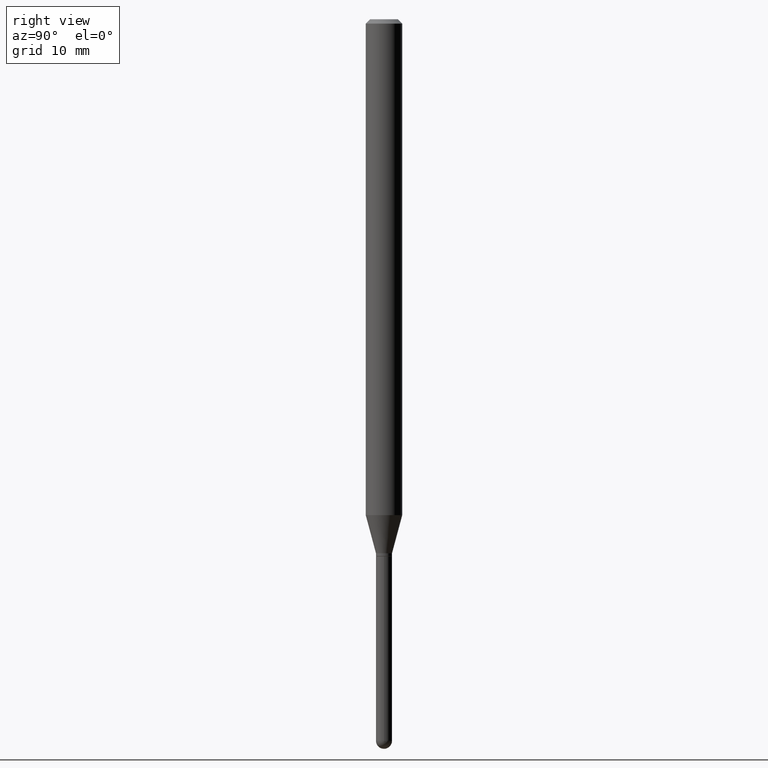
[diagram: clean part render]
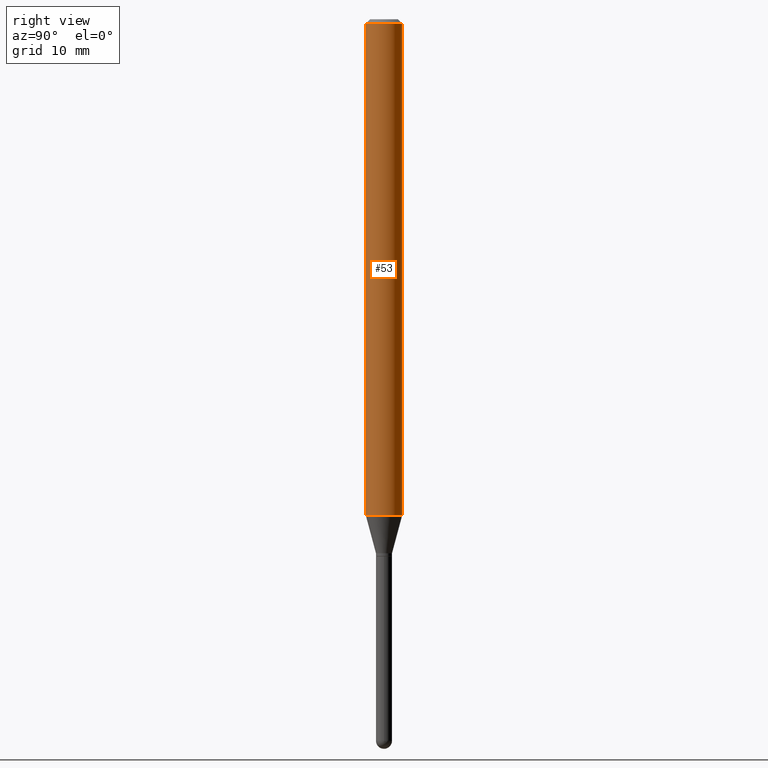
[diagram: same view with one face highlighted and labeled with its STEP entity id]
A machine part, right view. The second image highlights one B-rep face of the part: STEP entity #53.
In plain terms, the highlighted cylindrical surface (edge-blend (fillet) strip) has radius 1.5875 mm, axis along (-0, 0, 1).
Its self-contained STEP definition (entity closure, byte-faithful):
#9 = EDGE_CURVE ( 'NONE', #385, #246, #301, .T. ) ;
#15 = LINE ( 'NONE', #134, #336 ) ;
#28 = AXIS2_PLACEMENT_3D ( 'NONE', #346, #228, #185 ) ;
#45 = CARTESIAN_POINT ( 'NONE',  ( 4.440892098501044258E-16, 0.06249999999999995837, -0.01500000000000022669 ) ) ;
#53 = ADVANCED_FACE ( 'NONE', ( #347 ), #505, .T. ) ;
#81 = DIRECTION ( 'NONE',  ( -6.982962677686265922E-15, -1.000000000000000000, 3.483106191921935554E-15 ) ) ;
#85 = DIRECTION ( 'NONE',  ( -2.445464170802400853E-29, 3.491487976975052738E-15, 1.000000000000000000 ) ) ;
#112 = VECTOR ( 'NONE', #144, 39.37007874015748143 ) ;
#125 = DIRECTION ( 'NONE',  ( -6.982962677686265922E-15, -1.000000000000000000, 4.370956789862821150E-15 ) ) ;
#134 = CARTESIAN_POINT ( 'NONE',  ( -4.364351673553916201E-16, -0.06250000000000000000, 2.182179985609407961E-16 ) ) ;
#140 = ORIENTED_EDGE ( 'NONE', *, *, #259, .T. ) ;
#142 = ORIENTED_EDGE ( 'NONE', *, *, #230, .F. ) ;
#144 = DIRECTION ( 'NONE',  ( -2.445464170802401133E-29, 3.491487976975052738E-15, 1.000000000000000000 ) ) ;
#146 = CIRCLE ( 'NONE', #512, 0.06250000000000000000 ) ;
#158 = DIRECTION ( 'NONE',  ( -2.445464170802400853E-29, 3.491487976975052738E-15, 1.000000000000000000 ) ) ;
#171 = DIRECTION ( 'NONE',  ( -2.445464170802401133E-29, 3.491487976975052738E-15, 1.000000000000000000 ) ) ;
#185 = DIRECTION ( 'NONE',  ( -6.982962677686265922E-15, -1.000000000000000000, 3.491487976975052738E-15 ) ) ;
#216 = EDGE_LOOP ( 'NONE', ( #140, #409, #142, #266 ) ) ;
#222 = CARTESIAN_POINT ( 'NONE',  ( 4.440892098500625669E-16, 0.06250000000000000000, -2.182179985609407961E-16 ) ) ;
#228 = DIRECTION ( 'NONE',  ( -2.445464170802400853E-29, 3.491487976975052738E-15, 1.000000000000000000 ) ) ;
#230 = EDGE_CURVE ( 'NONE', #299, #246, #146, .T. ) ;
#239 = AXIS2_PLACEMENT_3D ( 'NONE', #322, #85, #125 ) ;
#246 = VERTEX_POINT ( 'NONE', #45 ) ;
#259 = EDGE_CURVE ( 'NONE', #368, #385, #452, .T. ) ;
#266 = ORIENTED_EDGE ( 'NONE', *, *, #439, .F. ) ;
#276 = CARTESIAN_POINT ( 'NONE',  ( 4.440892098501039328E-16, 0.06249999999999404643, -1.699378221735089678 ) ) ;
#299 = VERTEX_POINT ( 'NONE', #400 ) ;
#301 = LINE ( 'NONE', #222, #112 ) ;
#322 = CARTESIAN_POINT ( 'NONE',  ( 4.155768553895059531E-29, -5.933358629521309824E-15, -1.699378221735089456 ) ) ;
#336 = VECTOR ( 'NONE', #171, 39.37007874015748143 ) ;
#346 = CARTESIAN_POINT ( 'NONE',  ( 0.000000000000000000, 0.000000000000000000, 0.000000000000000000 ) ) ;
#347 = FACE_OUTER_BOUND ( 'NONE', #216, .T. ) ;
#368 = VERTEX_POINT ( 'NONE', #393 ) ;
#385 = VERTEX_POINT ( 'NONE', #276 ) ;
#393 = CARTESIAN_POINT ( 'NONE',  ( -4.364351673553502542E-16, -0.06250000000000595357, -1.699378221735089234 ) ) ;
#400 = CARTESIAN_POINT ( 'NONE',  ( -4.364351673553912750E-16, -0.06250000000000005551, -0.01499999999999979128 ) ) ;
#409 = ORIENTED_EDGE ( 'NONE', *, *, #9, .T. ) ;
#439 = EDGE_CURVE ( 'NONE', #368, #299, #15, .T. ) ;
#440 = CARTESIAN_POINT ( 'NONE',  ( 3.668196256203603906E-31, -5.237231965462582657E-17, -0.01500000000000000812 ) ) ;
#452 = CIRCLE ( 'NONE', #239, 0.06250000000000000000 ) ;
#505 = CYLINDRICAL_SURFACE ( 'NONE', #28, 0.06250000000000000000 ) ;
#512 = AXIS2_PLACEMENT_3D ( 'NONE', #440, #158, #81 ) ;